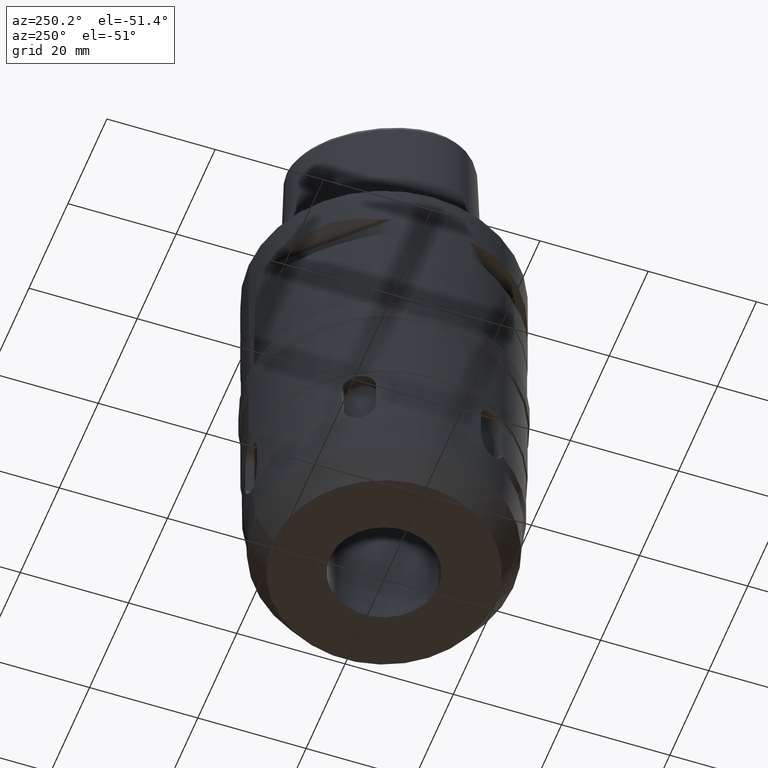
[diagram: clean part render]
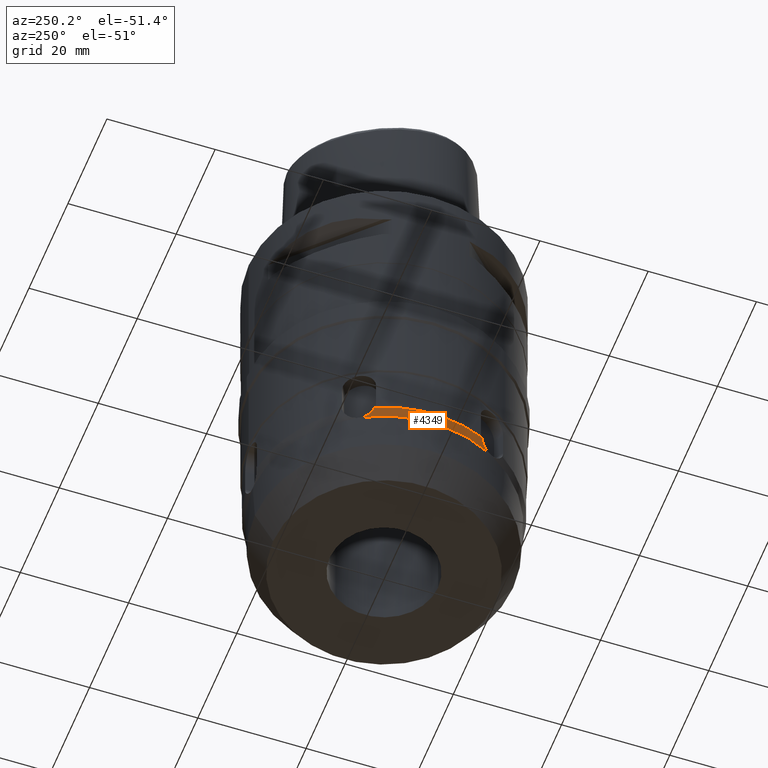
[diagram: same view with one face highlighted and labeled with its STEP entity id]
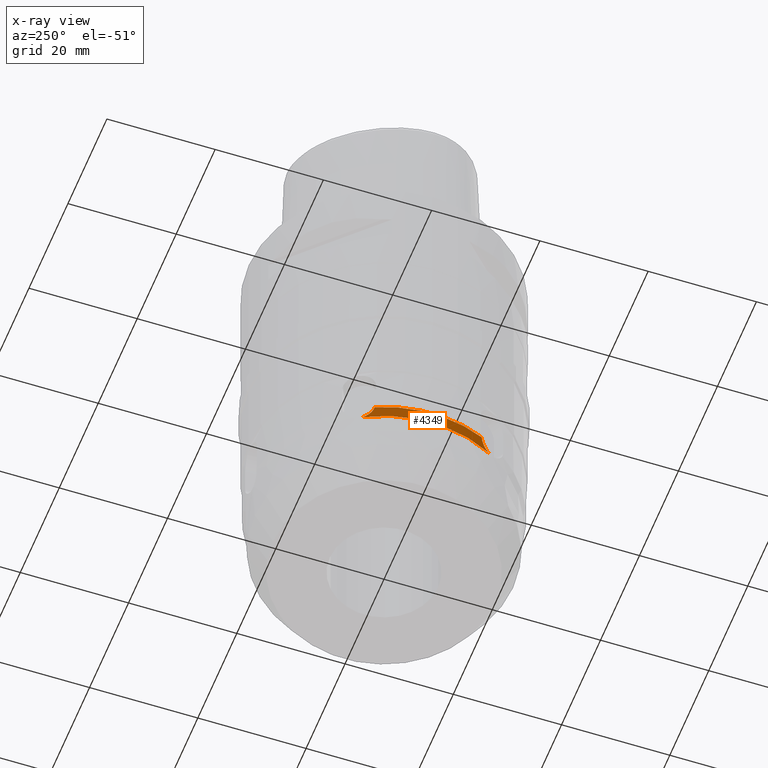
[diagram: x-ray of the same camera — body ghosted, the highlighted face saturated]
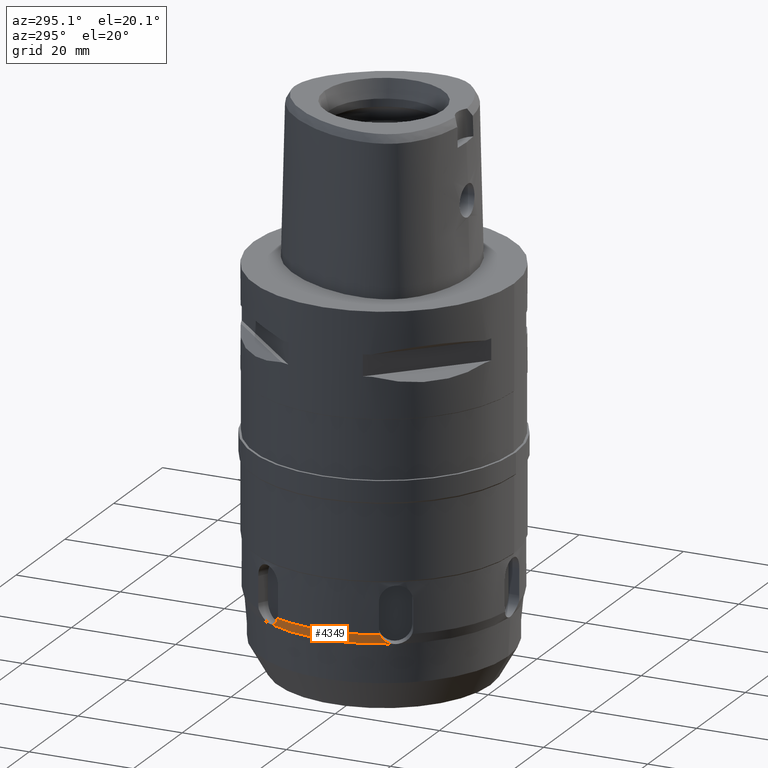
[diagram: same view with one face highlighted and labeled with its STEP entity id]
A machine part, auxiliary view. The second image highlights one B-rep face of the part: STEP entity #4349.
The next image is the same camera in x-ray: the body ghosted, the highlighted face saturated — about 0% of this face is hidden behind the body in this view.
A second angle (auxiliary view) of the same face is appended — the face is thin or edge-on in the first view.
In plain terms, the highlighted conical surface has half-angle 15 deg.
Its self-contained STEP definition (entity closure, byte-faithful):
#840=CARTESIAN_POINT('',(-2.269293057474E1,-9.878938362960E0,
-5.989999821489E1));
#1418=CARTESIAN_POINT('',(-2.269293057474E1,-9.878938362960E0,
-5.989999821489E1));
#1419=CARTESIAN_POINT('',(-2.259674249522E1,-9.935111222528E0,
-6.014546333634E1));
#1420=CARTESIAN_POINT('',(-2.238384442624E1,-1.011045552357E1,
-6.060941790744E1));
#1421=CARTESIAN_POINT('',(-2.201994664403E1,-1.053520659643E1,
-6.117683708236E1));
#1422=CARTESIAN_POINT('',(-2.162398758212E1,-1.109090469747E1,
-6.158400118357E1));
#1423=CARTESIAN_POINT('',(-2.135278481086E1,-1.151845019775E1,
-6.172853853284E1));
#1424=CARTESIAN_POINT('',(-2.121906062862E1,-1.173885021659E1,
-6.176705356418E1));
#1429=CARTESIAN_POINT('',(0.E0,0.E0,-6.176705353144E1));
#1430=DIRECTION('',(0.E0,0.E0,-1.E0));
#1431=DIRECTION('',(-8.750227635786E-1,-4.840817732772E-1,0.E0));
#1432=AXIS2_PLACEMENT_3D('',#1429,#1430,#1431);
#1437=CARTESIAN_POINT('',(-2.121906070137E1,1.173885010268E1,
-6.176705354294E1));
#1438=CARTESIAN_POINT('',(-2.135465176403E1,1.151537316968E1,
-6.172800077976E1));
#1439=CARTESIAN_POINT('',(-2.162843049801E1,1.108419122872E1,
-6.158070692602E1));
#1440=CARTESIAN_POINT('',(-2.202304954790E1,1.053134268975E1,
-6.117245709927E1));
#1441=CARTESIAN_POINT('',(-2.238475542509E1,1.010972218636E1,
-6.060739977177E1));
#1442=CARTESIAN_POINT('',(-2.259697373292E1,9.934944302690E0,
-6.014490698258E1));
#1443=CARTESIAN_POINT('',(-2.269298003598E1,9.878905739744E0,
-5.989986382165E1));
#1448=CARTESIAN_POINT('',(0.E0,0.E0,-5.99E1));
#1449=DIRECTION('',(0.E0,0.E0,1.E0));
#1450=DIRECTION('',(-9.168859240022E-1,3.991493484482E-1,0.E0));
#1451=AXIS2_PLACEMENT_3D('',#1448,#1449,#1450);
#2863=VERTEX_POINT('',#840);
#2864=CARTESIAN_POINT('',(-2.269292661905E1,9.878946374093E0,-5.99E1));
#2865=VERTEX_POINT('',#2864);
#2945=VERTEX_POINT('',#1424);
#2946=CARTESIAN_POINT('',(-2.121906096028E1,1.173884964423E1,
-6.176705353144E1));
#2947=VERTEX_POINT('',#2946);
#4336=CARTESIAN_POINT('',(0.E0,0.E0,-6.083352676572E1));
#4337=DIRECTION('',(0.E0,0.E0,1.E0));
#4338=DIRECTION('',(0.E0,1.E0,0.E0));
#4339=AXIS2_PLACEMENT_3D('',#4336,#4337,#4338);
#4340=CONICAL_SURFACE('',#4339,2.449986225701E1,1.5E1);
#4342=ORIENTED_EDGE('',*,*,#4341,.T.);
#4344=ORIENTED_EDGE('',*,*,#4343,.T.);
#4345=ORIENTED_EDGE('',*,*,#4316,.T.);
#4346=ORIENTED_EDGE('',*,*,#4014,.T.);
#4347=EDGE_LOOP('',(#4342,#4344,#4345,#4346));
#4348=FACE_OUTER_BOUND('',#4347,.F.);
#1425=B_SPLINE_CURVE_WITH_KNOTS('',3,(#1418,#1419,#1420,#1421,#1422,#1423,
#1424),.UNSPECIFIED.,.F.,.F.,(4,1,1,1,4),(0.E0,2.5E-1,5.E-1,7.5E-1,1.E0),
.UNSPECIFIED.);
#1433=CIRCLE('',#1432,2.424972451402E1);
#1444=B_SPLINE_CURVE_WITH_KNOTS('',3,(#1437,#1438,#1439,#1440,#1441,#1442,
#1443),.UNSPECIFIED.,.F.,.F.,(4,1,1,1,4),(0.E0,2.5E-1,5.E-1,7.5E-1,1.E0),
.UNSPECIFIED.);
#1452=CIRCLE('',#1451,2.475E1);
#4014=EDGE_CURVE('',#2865,#2863,#1452,.T.);
#4316=EDGE_CURVE('',#2947,#2865,#1444,.T.);
#4341=EDGE_CURVE('',#2863,#2945,#1425,.T.);
#4343=EDGE_CURVE('',#2945,#2947,#1433,.T.);
#4349=ADVANCED_FACE('',(#4348),#4340,.T.);